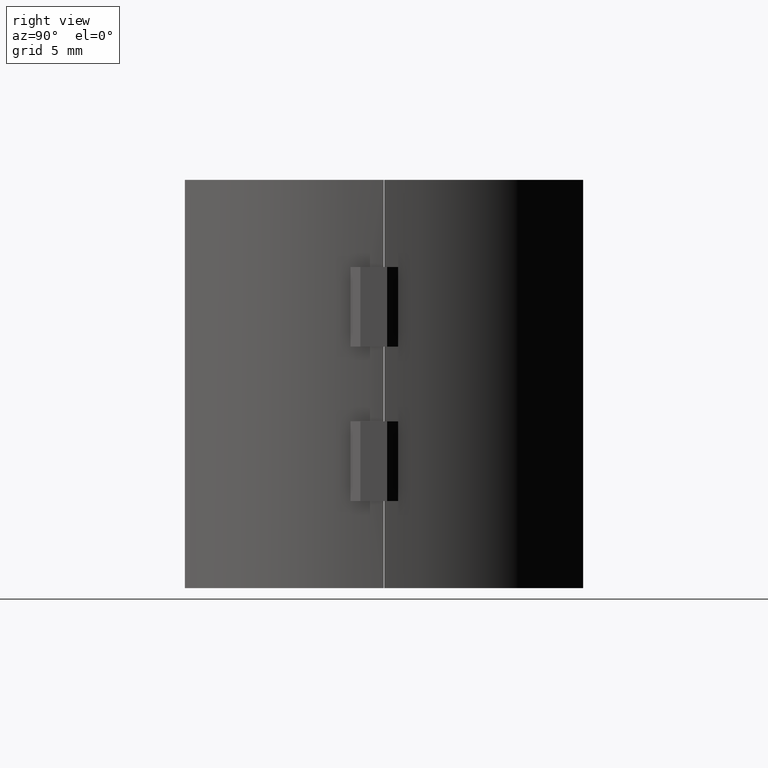
[diagram: clean part render]
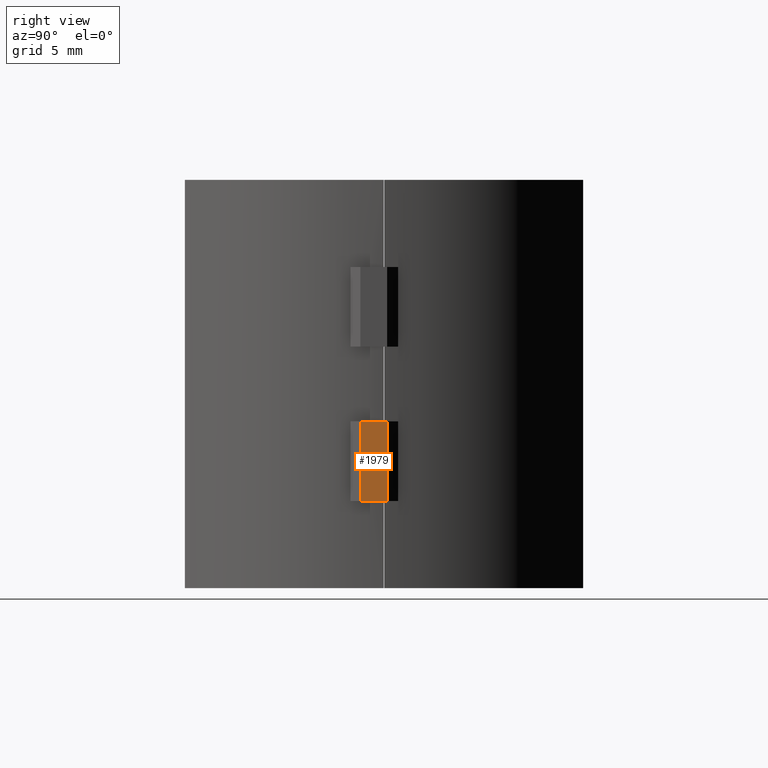
[diagram: same view with one face highlighted and labeled with its STEP entity id]
A machine part, right view. The second image highlights one B-rep face of the part: STEP entity #1979.
In plain terms, the highlighted planar face has unit normal (-1, 0, 0).
Its self-contained STEP definition (entity closure, byte-faithful):
#96 = EDGE_CURVE ( 'NONE', #3134, #1550, #2143, .T. ) ;
#124 = CARTESIAN_POINT ( 'NONE',  ( 11.75000000000000700, 0.1599999999999999800, -1.875000000000000000 ) ) ;
#300 = CARTESIAN_POINT ( 'NONE',  ( 11.75000000000000700, 0.1599999999999999800, -1.875000000000000000 ) ) ;
#612 = EDGE_CURVE ( 'NONE', #2290, #3134, #1890, .T. ) ;
#632 = DIRECTION ( 'NONE',  ( -1.000000000000000000, 0.0000000000000000000, 0.0000000000000000000 ) ) ;
#699 = ORIENTED_EDGE ( 'NONE', *, *, #612, .T. ) ;
#721 = CARTESIAN_POINT ( 'NONE',  ( 11.75000000000000700, -1.183764073526878000, -5.875000000000000000 ) ) ;
#819 = EDGE_CURVE ( 'NONE', #1496, #1550, #1899, .T. ) ;
#919 = ORIENTED_EDGE ( 'NONE', *, *, #1364, .F. ) ;
#981 = EDGE_LOOP ( 'NONE', ( #699, #2722, #2782, #919 ) ) ;
#1118 = FACE_OUTER_BOUND ( 'NONE', #981, .T. ) ;
#1295 = DIRECTION ( 'NONE',  ( 0.0000000000000000000, 0.0000000000000000000, 1.000000000000000000 ) ) ;
#1358 = CARTESIAN_POINT ( 'NONE',  ( 11.75000000000000700, -1.183764073526878000, -1.875000000000000000 ) ) ;
#1364 = EDGE_CURVE ( 'NONE', #2290, #1496, #2751, .T. ) ;
#1477 = DIRECTION ( 'NONE',  ( 0.0000000000000000000, 1.000000000000000000, 0.0000000000000000000 ) ) ;
#1496 = VERTEX_POINT ( 'NONE', #2059 ) ;
#1550 = VERTEX_POINT ( 'NONE', #2794 ) ;
#1591 = VECTOR ( 'NONE', #1669, 1000.000000000000000 ) ;
#1651 = DIRECTION ( 'NONE',  ( 0.0000000000000000000, 0.0000000000000000000, -1.000000000000000000 ) ) ;
#1669 = DIRECTION ( 'NONE',  ( 0.0000000000000000000, 0.0000000000000000000, -1.000000000000000000 ) ) ;
#1890 = LINE ( 'NONE', #2372, #2721 ) ;
#1899 = LINE ( 'NONE', #2898, #1591 ) ;
#1908 = DIRECTION ( 'NONE',  ( 0.0000000000000000000, 1.000000000000000000, 0.0000000000000000000 ) ) ;
#1979 = ADVANCED_FACE ( 'NONE', ( #1118 ), #3005, .F. ) ;
#2059 = CARTESIAN_POINT ( 'NONE',  ( 11.75000000000000700, 0.1599999999999999800, -1.875000000000000000 ) ) ;
#2064 = CARTESIAN_POINT ( 'NONE',  ( 11.75000000000000700, 0.1599999999999999800, -5.875000000000000000 ) ) ;
#2143 = LINE ( 'NONE', #2064, #2434 ) ;
#2290 = VERTEX_POINT ( 'NONE', #1358 ) ;
#2372 = CARTESIAN_POINT ( 'NONE',  ( 11.75000000000000700, -1.183764073526878000, -1.875000000000000000 ) ) ;
#2434 = VECTOR ( 'NONE', #1908, 1000.000000000000000 ) ;
#2551 = AXIS2_PLACEMENT_3D ( 'NONE', #124, #632, #1295 ) ;
#2676 = VECTOR ( 'NONE', #1477, 1000.000000000000000 ) ;
#2721 = VECTOR ( 'NONE', #1651, 1000.000000000000000 ) ;
#2722 = ORIENTED_EDGE ( 'NONE', *, *, #96, .T. ) ;
#2751 = LINE ( 'NONE', #300, #2676 ) ;
#2782 = ORIENTED_EDGE ( 'NONE', *, *, #819, .F. ) ;
#2794 = CARTESIAN_POINT ( 'NONE',  ( 11.75000000000000700, 0.1599999999999999800, -5.875000000000000000 ) ) ;
#2898 = CARTESIAN_POINT ( 'NONE',  ( 11.75000000000000700, 0.1599999999999999800, -1.875000000000000000 ) ) ;
#3005 = PLANE ( 'NONE',  #2551 ) ;
#3134 = VERTEX_POINT ( 'NONE', #721 ) ;